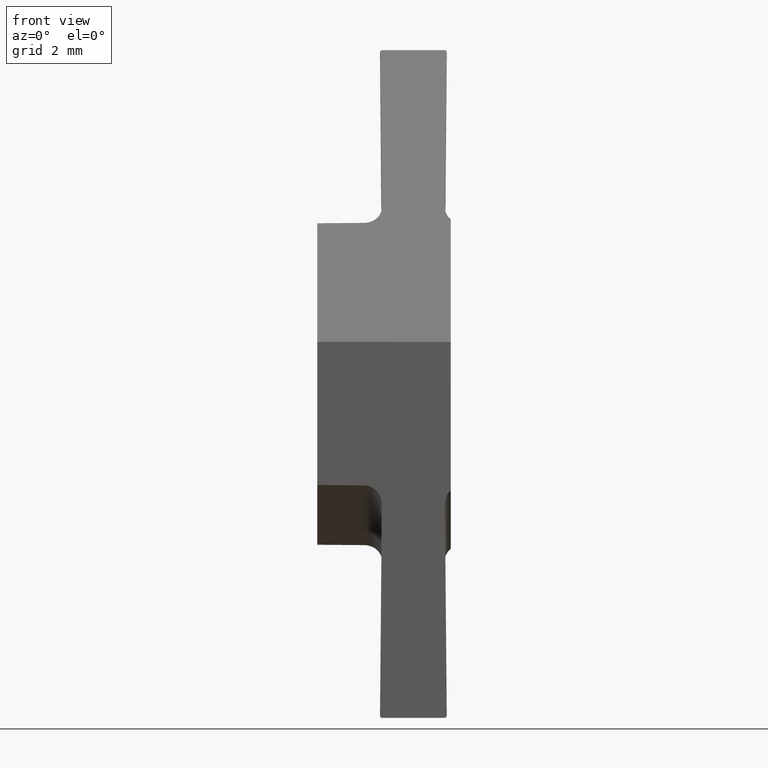
[diagram: clean part render]
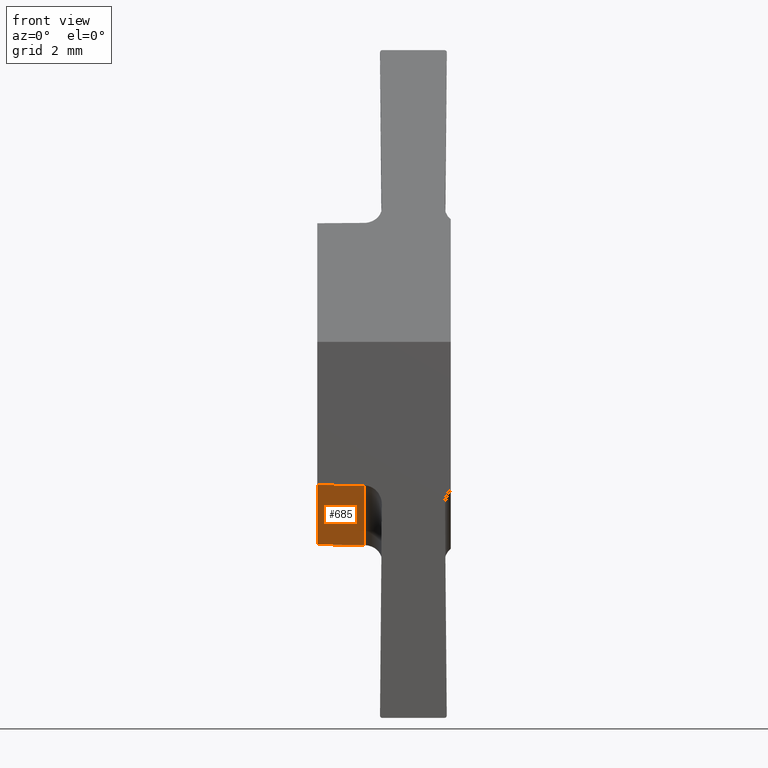
[diagram: same view with one face highlighted and labeled with its STEP entity id]
A machine part, front view. The second image highlights one B-rep face of the part: STEP entity #685.
In plain terms, the highlighted planar face has unit normal (0.0083, 0.309, 0.951).
Its self-contained STEP definition (entity closure, byte-faithful):
#15 = LINE ( 'NONE', #16, #158 ) ;
#16 = CARTESIAN_POINT ( 'NONE',  ( 6.758715055971984346E-18, 3.960821204758893543, -4.530197881483450040 ) ) ;
#22 = CARTESIAN_POINT ( 'NONE',  ( 6.758715055971984346E-18, 3.960821204758893543, -4.530197881483450040 ) ) ;
#27 = CARTESIAN_POINT ( 'NONE',  ( 2.971722154336991384, -2.999999999999830802, -2.294423796453480602 ) ) ;
#43 = VERTEX_POINT ( 'NONE', #95 ) ;
#95 = CARTESIAN_POINT ( 'NONE',  ( -4.303015114662157645E-16, 1.133493774764669171, -3.611543511778783966 ) ) ;
#131 = EDGE_CURVE ( 'NONE', #234, #599, #251, .T. ) ;
#134 = LINE ( 'NONE', #27, #173 ) ;
#138 = CARTESIAN_POINT ( 'NONE',  ( 3.379357527985992173E-18, -2.999999999999831246, -2.268489970101723152 ) ) ;
#144 = FACE_OUTER_BOUND ( 'NONE', #717, .T. ) ;
#158 = VECTOR ( 'NONE', #210, 1000.000000000000114 ) ;
#163 = ORIENTED_EDGE ( 'NONE', *, *, #131, .T. ) ;
#173 = VECTOR ( 'NONE', #326, 999.9999999999998863 ) ;
#190 = CARTESIAN_POINT ( 'NONE',  ( 1.054768801550695079, -2.999999999999830802, -2.277694797982669606 ) ) ;
#210 = DIRECTION ( 'NONE',  ( 0.000000000000000000, -0.9510565162951555296, 0.3090169943749411230 ) ) ;
#218 = VERTEX_POINT ( 'NONE', #138 ) ;
#234 = VERTEX_POINT ( 'NONE', #563 ) ;
#244 = CARTESIAN_POINT ( 'NONE',  ( 1.054768801550694857, -2.998973231275688267, -2.278028415364619974 ) ) ;
#251 = LINE ( 'NONE', #244, #349 ) ;
#324 = AXIS2_PLACEMENT_3D ( 'NONE', #22, #695, #691 ) ;
#326 = DIRECTION ( 'NONE',  ( 0.9999619230641714207, -4.230466510160072040E-19, -0.008726535498370404514 ) ) ;
#329 = PLANE ( 'NONE',  #324 ) ;
#349 = VECTOR ( 'NONE', #484, 1000.000000000000227 ) ;
#403 = VECTOR ( 'NONE', #416, 1000.000000000000114 ) ;
#416 = DIRECTION ( 'NONE',  ( -0.9999623398293699950, 0.004977867723314927453, 0.007109131866878152899 ) ) ;
#484 = DIRECTION ( 'NONE',  ( -4.336808689942016773E-19, -0.9510565162951556406, 0.3090169943749410120 ) ) ;
#563 = CARTESIAN_POINT ( 'NONE',  ( 1.054768801550694857, 1.128243077449713416, -3.619042284683144040 ) ) ;
#564 = EDGE_CURVE ( 'NONE', #234, #43, #771, .T. ) ;
#599 = VERTEX_POINT ( 'NONE', #190 ) ;
#655 = EDGE_CURVE ( 'NONE', #218, #599, #134, .T. ) ;
#668 = CARTESIAN_POINT ( 'NONE',  ( 3.044514925925334570, 1.118338011413120947, -3.633188184999952774 ) ) ;
#674 = EDGE_CURVE ( 'NONE', #43, #218, #15, .T. ) ;
#685 = ADVANCED_FACE ( 'NONE', ( #144 ), #329, .F. ) ;
#687 = ORIENTED_EDGE ( 'NONE', *, *, #564, .F. ) ;
#691 = DIRECTION ( 'NONE',  ( 0.000000000000000000, -0.9510565162951556406, 0.3090169943749410675 ) ) ;
#693 = ORIENTED_EDGE ( 'NONE', *, *, #674, .F. ) ;
#695 = DIRECTION ( 'NONE',  ( 0.008299458626915803133, 0.3090063514897841701, 0.9510237608627201134 ) ) ;
#710 = ORIENTED_EDGE ( 'NONE', *, *, #655, .F. ) ;
#717 = EDGE_LOOP ( 'NONE', ( #687, #163, #710, #693 ) ) ;
#771 = LINE ( 'NONE', #668, #403 ) ;